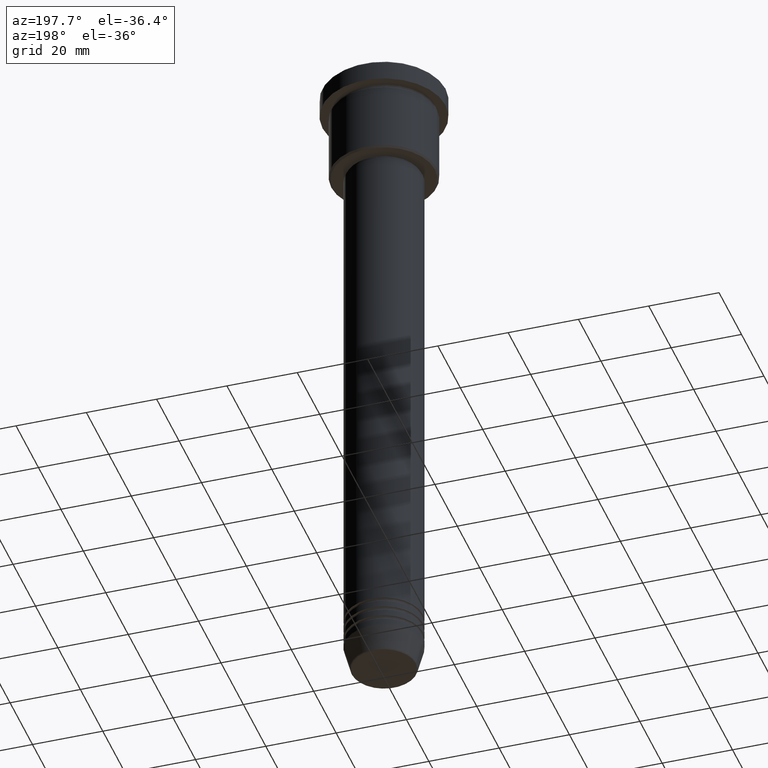
[diagram: clean part render]
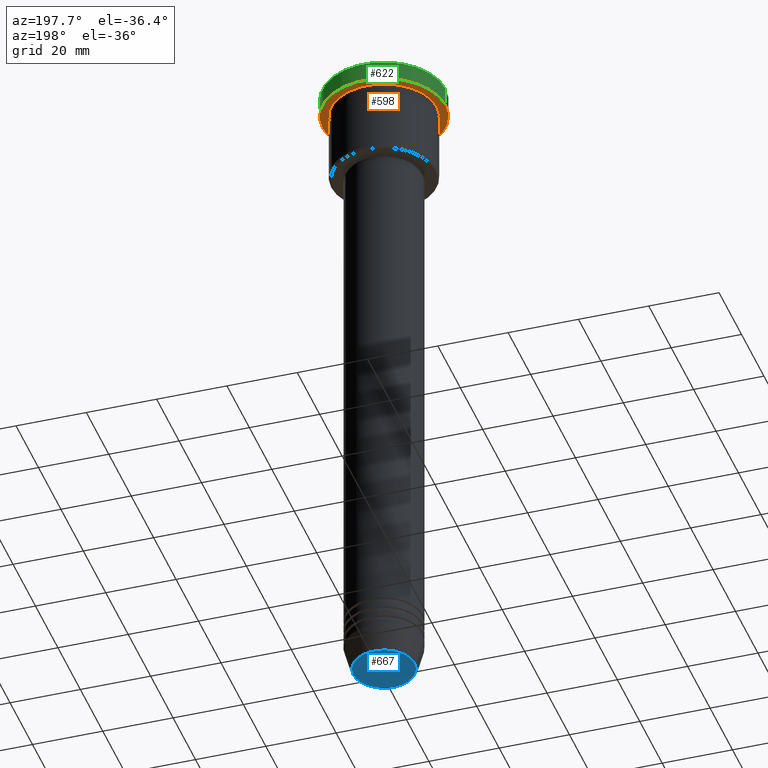
[diagram: same view with three faces highlighted in distinct colors, each labeled with its STEP entity id]
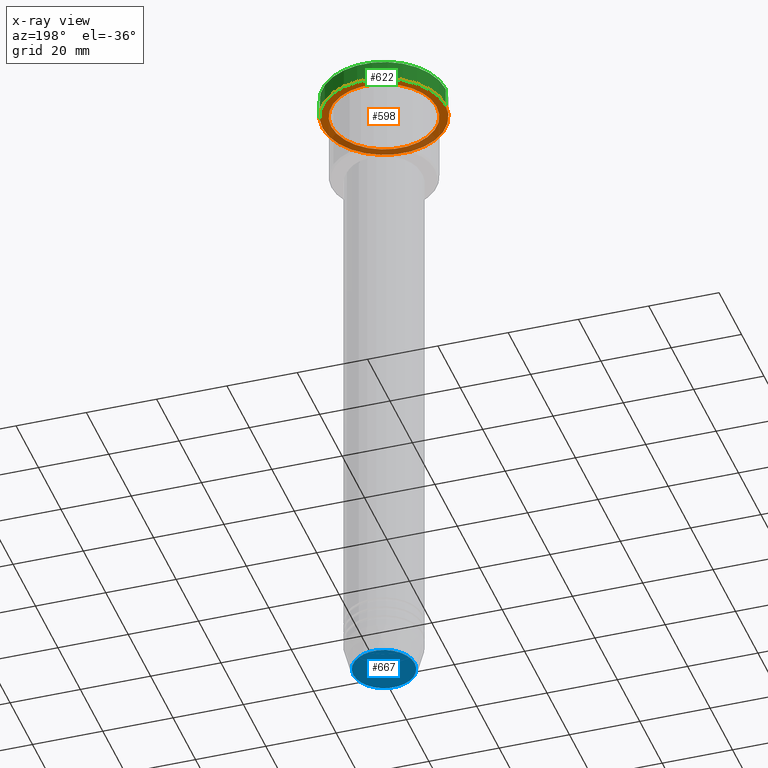
[diagram: x-ray of the same camera — body ghosted, the three highlighted faces saturated]
A machine part, auxiliary view with three faces highlighted in distinct colors.
The next image is the same camera in x-ray (body ghosted, the three faces saturated) — at least one of them is partly hidden behind the body in this view.
Their STEP definitions:

[orange] entity #598 — the highlighted planar face has unit normal (0, 0, -1).
#1 = VERTEX_POINT ( 'NONE', #737 ) ;
#6 = DIRECTION ( 'NONE',  ( -0.000000000000000000, -0.000000000000000000, 1.000000000000000000 ) ) ;
#48 = VERTEX_POINT ( 'NONE', #397 ) ;
#58 = DIRECTION ( 'NONE',  ( -1.000000000000000000, 0.000000000000000000, -0.000000000000000000 ) ) ;
#92 = VERTEX_POINT ( 'NONE', #596 ) ;
#174 = DIRECTION ( 'NONE',  ( -1.000000000000000000, 0.000000000000000000, 0.000000000000000000 ) ) ;
#180 = DIRECTION ( 'NONE',  ( 1.000000000000000000, 0.000000000000000000, 0.000000000000000000 ) ) ;
#203 = AXIS2_PLACEMENT_3D ( 'NONE', #614, #263, #180 ) ;
#243 = EDGE_CURVE ( 'NONE', #1, #479, #1134, .T. ) ;
#263 = DIRECTION ( 'NONE',  ( -0.000000000000000000, -0.000000000000000000, 1.000000000000000000 ) ) ;
#304 = CARTESIAN_POINT ( 'NONE',  ( 15.00000000000000000, 1.836970198721029589E-15, -5.999999999999994671 ) ) ;
#318 = DIRECTION ( 'NONE',  ( -0.000000000000000000, -0.000000000000000000, 1.000000000000000000 ) ) ;
#328 = CARTESIAN_POINT ( 'NONE',  ( 0.000000000000000000, 0.000000000000000000, -5.999999999999995559 ) ) ;
#397 = CARTESIAN_POINT ( 'NONE',  ( -17.50000000000000000, 2.143131898507868248E-15, -5.999999999999995559 ) ) ;
#399 = CARTESIAN_POINT ( 'NONE',  ( 0.000000000000000000, 0.000000000000000000, -5.999999999999995559 ) ) ;
#437 = ORIENTED_EDGE ( 'NONE', *, *, #743, .F. ) ;
#479 = VERTEX_POINT ( 'NONE', #304 ) ;
#496 = ORIENTED_EDGE ( 'NONE', *, *, #243, .T. ) ;
#506 = DIRECTION ( 'NONE',  ( 1.000000000000000000, 0.000000000000000000, 0.000000000000000000 ) ) ;
#535 = EDGE_CURVE ( 'NONE', #479, #1, #1101, .T. ) ;
#588 = EDGE_CURVE ( 'NONE', #92, #48, #639, .T. ) ;
#596 = CARTESIAN_POINT ( 'NONE',  ( 17.50000000000000000, 0.000000000000000000, -5.999999999999995559 ) ) ;
#598 = ADVANCED_FACE ( 'NONE', ( #760, #1132 ), #952, .T. ) ;
#603 = DIRECTION ( 'NONE',  ( -0.000000000000000000, -0.000000000000000000, 1.000000000000000000 ) ) ;
#614 = CARTESIAN_POINT ( 'NONE',  ( 0.000000000000000000, 0.000000000000000000, -5.999999999999995559 ) ) ;
#616 = AXIS2_PLACEMENT_3D ( 'NONE', #1169, #6, #174 ) ;
#639 = CIRCLE ( 'NONE', #1063, 17.50000000000000000 ) ;
#737 = CARTESIAN_POINT ( 'NONE',  ( -15.00000000000000000, 0.000000000000000000, -5.999999999999994671 ) ) ;
#743 = EDGE_CURVE ( 'NONE', #48, #92, #786, .T. ) ;
#760 = FACE_BOUND ( 'NONE', #951, .T. ) ;
#779 = EDGE_LOOP ( 'NONE', ( #798, #437 ) ) ;
#786 = CIRCLE ( 'NONE', #203, 17.50000000000000000 ) ;
#798 = ORIENTED_EDGE ( 'NONE', *, *, #588, .F. ) ;
#861 = CARTESIAN_POINT ( 'NONE',  ( 0.000000000000000000, 17.50000000000000000, -5.999999999999995559 ) ) ;
#893 = ORIENTED_EDGE ( 'NONE', *, *, #535, .T. ) ;
#947 = DIRECTION ( 'NONE',  ( -1.000000000000000000, 0.000000000000000000, 0.000000000000000000 ) ) ;
#951 = EDGE_LOOP ( 'NONE', ( #496, #893 ) ) ;
#952 = PLANE ( 'NONE',  #1121 ) ;
#956 = DIRECTION ( 'NONE',  ( 0.000000000000000000, 0.000000000000000000, -1.000000000000000000 ) ) ;
#1044 = AXIS2_PLACEMENT_3D ( 'NONE', #328, #603, #947 ) ;
#1063 = AXIS2_PLACEMENT_3D ( 'NONE', #399, #318, #506 ) ;
#1101 = CIRCLE ( 'NONE', #1044, 15.00000000000000000 ) ;
#1121 = AXIS2_PLACEMENT_3D ( 'NONE', #861, #956, #58 ) ;
#1132 = FACE_OUTER_BOUND ( 'NONE', #779, .T. ) ;
#1134 = CIRCLE ( 'NONE', #616, 15.00000000000000000 ) ;
#1169 = CARTESIAN_POINT ( 'NONE',  ( 0.000000000000000000, 0.000000000000000000, -5.999999999999995559 ) ) ;

[blue] entity #667 — the highlighted planar face has unit normal (0, -0, 1).
#131 = ORIENTED_EDGE ( 'NONE', *, *, #1002, .T. ) ;
#159 = CARTESIAN_POINT ( 'NONE',  ( 0.000000000000000000, 0.000000000000000000, -192.0000000000000000 ) ) ;
#168 = AXIS2_PLACEMENT_3D ( 'NONE', #592, #332, #425 ) ;
#332 = DIRECTION ( 'NONE',  ( 0.000000000000000000, 0.000000000000000000, -1.000000000000000000 ) ) ;
#344 = VERTEX_POINT ( 'NONE', #534 ) ;
#384 = CARTESIAN_POINT ( 'NONE',  ( 0.000000000000000000, 0.000000000000000000, -192.0000000000000000 ) ) ;
#425 = DIRECTION ( 'NONE',  ( 1.000000000000000000, 0.000000000000000000, 0.000000000000000000 ) ) ;
#445 = PLANE ( 'NONE',  #466 ) ;
#466 = AXIS2_PLACEMENT_3D ( 'NONE', #159, #1175, #812 ) ;
#493 = CARTESIAN_POINT ( 'NONE',  ( 8.740692158992663607, 0.000000000000000000, -192.0000000000000000 ) ) ;
#505 = AXIS2_PLACEMENT_3D ( 'NONE', #384, #726, #555 ) ;
#534 = CARTESIAN_POINT ( 'NONE',  ( -8.740692158992663607, 1.099999016768740442E-15, -192.0000000000000000 ) ) ;
#555 = DIRECTION ( 'NONE',  ( 1.000000000000000000, 0.000000000000000000, 0.000000000000000000 ) ) ;
#592 = CARTESIAN_POINT ( 'NONE',  ( 0.000000000000000000, 0.000000000000000000, -192.0000000000000000 ) ) ;
#632 = VERTEX_POINT ( 'NONE', #493 ) ;
#667 = ADVANCED_FACE ( 'NONE', ( #975 ), #445, .F. ) ;
#682 = CIRCLE ( 'NONE', #505, 8.740692158992663607 ) ;
#726 = DIRECTION ( 'NONE',  ( 0.000000000000000000, 0.000000000000000000, -1.000000000000000000 ) ) ;
#812 = DIRECTION ( 'NONE',  ( 1.000000000000000000, 0.000000000000000000, 0.000000000000000000 ) ) ;
#939 = EDGE_CURVE ( 'NONE', #632, #344, #682, .T. ) ;
#975 = FACE_OUTER_BOUND ( 'NONE', #1131, .T. ) ;
#1002 = EDGE_CURVE ( 'NONE', #344, #632, #1178, .T. ) ;
#1131 = EDGE_LOOP ( 'NONE', ( #1161, #131 ) ) ;
#1161 = ORIENTED_EDGE ( 'NONE', *, *, #939, .T. ) ;
#1175 = DIRECTION ( 'NONE',  ( 0.000000000000000000, -0.000000000000000000, 1.000000000000000000 ) ) ;
#1178 = CIRCLE ( 'NONE', #168, 8.740692158992663607 ) ;

[green] entity #622 — the highlighted cylindrical surface (partial cylindrical patch) has radius 17.5 mm, axis along (-0, -0, 1).
#46 = CARTESIAN_POINT ( 'NONE',  ( -17.50000000000000000, 2.143131898507868248E-15, -0.5000000000000005551 ) ) ;
#48 = VERTEX_POINT ( 'NONE', #397 ) ;
#72 = CARTESIAN_POINT ( 'NONE',  ( -17.50000000000000000, 2.143131898507868248E-15, 0.000000000000000000 ) ) ;
#78 = VERTEX_POINT ( 'NONE', #46 ) ;
#92 = VERTEX_POINT ( 'NONE', #596 ) ;
#218 = DIRECTION ( 'NONE',  ( -0.000000000000000000, -0.000000000000000000, 1.000000000000000000 ) ) ;
#219 = ORIENTED_EDGE ( 'NONE', *, *, #588, .T. ) ;
#250 = EDGE_CURVE ( 'NONE', #48, #78, #1076, .T. ) ;
#265 = ORIENTED_EDGE ( 'NONE', *, *, #515, .F. ) ;
#281 = DIRECTION ( 'NONE',  ( 0.000000000000000000, 0.000000000000000000, -1.000000000000000000 ) ) ;
#309 = DIRECTION ( 'NONE',  ( 1.000000000000000000, 0.000000000000000000, 0.000000000000000000 ) ) ;
#318 = DIRECTION ( 'NONE',  ( -0.000000000000000000, -0.000000000000000000, 1.000000000000000000 ) ) ;
#333 = CIRCLE ( 'NONE', #1001, 17.50000000000000000 ) ;
#353 = CARTESIAN_POINT ( 'NONE',  ( 17.50000000000000000, 0.000000000000000000, -0.5000000000000005551 ) ) ;
#383 = EDGE_LOOP ( 'NONE', ( #219, #1143, #1127, #265 ) ) ;
#397 = CARTESIAN_POINT ( 'NONE',  ( -17.50000000000000000, 2.143131898507868248E-15, -5.999999999999995559 ) ) ;
#399 = CARTESIAN_POINT ( 'NONE',  ( 0.000000000000000000, 0.000000000000000000, -5.999999999999995559 ) ) ;
#494 = EDGE_CURVE ( 'NONE', #78, #692, #333, .T. ) ;
#506 = DIRECTION ( 'NONE',  ( 1.000000000000000000, 0.000000000000000000, 0.000000000000000000 ) ) ;
#515 = EDGE_CURVE ( 'NONE', #92, #692, #874, .T. ) ;
#550 = DIRECTION ( 'NONE',  ( 1.000000000000000000, 0.000000000000000000, 0.000000000000000000 ) ) ;
#579 = AXIS2_PLACEMENT_3D ( 'NONE', #593, #772, #309 ) ;
#588 = EDGE_CURVE ( 'NONE', #92, #48, #639, .T. ) ;
#593 = CARTESIAN_POINT ( 'NONE',  ( 0.000000000000000000, 0.000000000000000000, 0.000000000000000000 ) ) ;
#596 = CARTESIAN_POINT ( 'NONE',  ( 17.50000000000000000, 0.000000000000000000, -5.999999999999995559 ) ) ;
#622 = ADVANCED_FACE ( 'NONE', ( #867 ), #963, .T. ) ;
#639 = CIRCLE ( 'NONE', #1063, 17.50000000000000000 ) ;
#692 = VERTEX_POINT ( 'NONE', #353 ) ;
#765 = VECTOR ( 'NONE', #902, 1000.000000000000000 ) ;
#772 = DIRECTION ( 'NONE',  ( -0.000000000000000000, -0.000000000000000000, 1.000000000000000000 ) ) ;
#782 = CARTESIAN_POINT ( 'NONE',  ( 17.50000000000000000, 0.000000000000000000, 0.000000000000000000 ) ) ;
#867 = FACE_OUTER_BOUND ( 'NONE', #383, .T. ) ;
#874 = LINE ( 'NONE', #782, #1139 ) ;
#902 = DIRECTION ( 'NONE',  ( -0.000000000000000000, -0.000000000000000000, 1.000000000000000000 ) ) ;
#963 = CYLINDRICAL_SURFACE ( 'NONE', #579, 17.50000000000000000 ) ;
#1001 = AXIS2_PLACEMENT_3D ( 'NONE', #1039, #281, #550 ) ;
#1039 = CARTESIAN_POINT ( 'NONE',  ( 0.000000000000000000, 0.000000000000000000, -0.5000000000000005551 ) ) ;
#1063 = AXIS2_PLACEMENT_3D ( 'NONE', #399, #318, #506 ) ;
#1076 = LINE ( 'NONE', #72, #765 ) ;
#1127 = ORIENTED_EDGE ( 'NONE', *, *, #494, .T. ) ;
#1139 = VECTOR ( 'NONE', #218, 1000.000000000000000 ) ;
#1143 = ORIENTED_EDGE ( 'NONE', *, *, #250, .T. ) ;